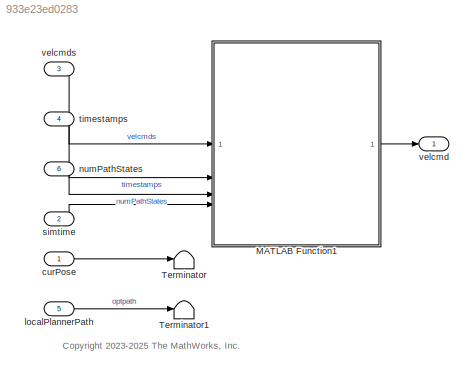
MODEL slx_933e23ed0283
KIND model
CONFIG AbsTol = auto
CONFIG EnableMultiTasking = off
CONFIG FixedStep = 0.001
CONFIG MaxStep = auto
CONFIG MinStep = auto
CONFIG RelTol = 1e-3
CONFIG SampleTimeConstraint = Unconstrained
CONFIG SolverName = VariableStepAuto
CONFIG StartTime = 0.0
CONFIG StopTime = tsReplan*2
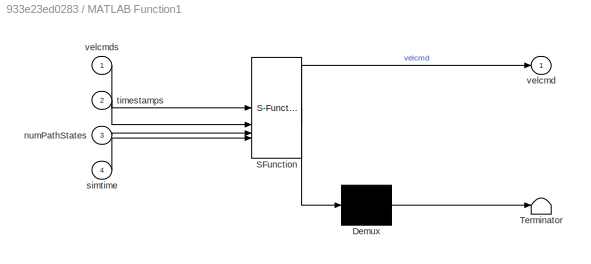
BLOCK [SubSystem] MATLAB Function1
  ErrorFcn = Stateflow.Translate.translate
  LibrarySourceBlock = simulink/User-Defined\nFunctions/MATLAB Function
  PermitHierarchicalResolution = ExplicitOnly
  SFBlockType = MATLAB Function
  TreatAsAtomicUnit = on
BLOCK [Demux] MATLAB Function1/ Demux 
  Outputs = 1
BLOCK [S-Function] MATLAB Function1/ SFunction 
  EnableBusSupport = on
  FunctionName = sf_sfun
  PortCounts = [4 2]
  SFcnIsStateOwnerBlock = off
  SFunctionDeploymentMode = off
  Tag = Stateflow S-Function 1
BLOCK [Terminator] MATLAB Function1/ Terminator 
BLOCK [Inport] MATLAB Function1/numPathStates
  Port = 3
BLOCK [Inport] MATLAB Function1/simtime
  Port = 4
BLOCK [Inport] MATLAB Function1/timestamps
  Port = 2
BLOCK [Outport] MATLAB Function1/velcmd
BLOCK [Inport] MATLAB Function1/velcmds
BLOCK [Terminator] Terminator
BLOCK [Terminator] Terminator1
BLOCK [Inport] curPose
  OutDataTypeStr = double
  PortDimensions = [1 3]
  SamplingMode = Sample based
  SignalType = real
BLOCK [Inport] localPlannerPath
  OutDataTypeStr = double
  Port = 5
  PortDimensions = [1000 3]
  SamplingMode = Sample based
  SignalType = real
BLOCK [Inport] numPathStates
  OutDataTypeStr = double
  Port = 6
  PortDimensions = 1
  SamplingMode = Sample based
  SignalType = real
BLOCK [Inport] simtime
  OutDataTypeStr = double
  Port = 2
  PortDimensions = 1
  SamplingMode = Sample based
  SignalType = real
BLOCK [Inport] timestamps
  OutDataTypeStr = double
  Port = 4
  PortDimensions = [1000 1]
  SamplingMode = Sample based
  SignalType = real
BLOCK [Outport] velcmd
  OutDataTypeStr = double
  PortDimensions = [1 2]
  SamplingMode = Sample based
  SignalType = real
BLOCK [Inport] velcmds
  OutDataTypeStr = double
  Port = 3
  PortDimensions = [1000 2]
  SamplingMode = Sample based
  SignalType = real
ANNOTATION (root): <copyright redacted>
LINE MATLAB Function1:1 -> velcmd:1
LINE curPose:1 -> Terminator:1
LINE localPlannerPath:1 -> Terminator1:1
LINE numPathStates:1 -> MATLAB Function1:3
LINE simtime:1 -> MATLAB Function1:4
LINE timestamps:1 -> MATLAB Function1:2
LINE velcmds:1 -> MATLAB Function1:1
CHART MATLAB Function1 states=1 transitions=1
  STATE_LABEL 'eML_blk_kernel()'
  STATE_LABEL 'SCRIPT:\nfunction velcmd = controlSelector(velcmds, timestamps, numPathStates, simtime)\n    velcmd_ = velocityCommand(velcmds(1:numPathStates,:), timestamps(1:numPathStates,:), simtime);\n    velcmd = velcmd_(1,1:2);'
CHART  states=0 transitions=0
